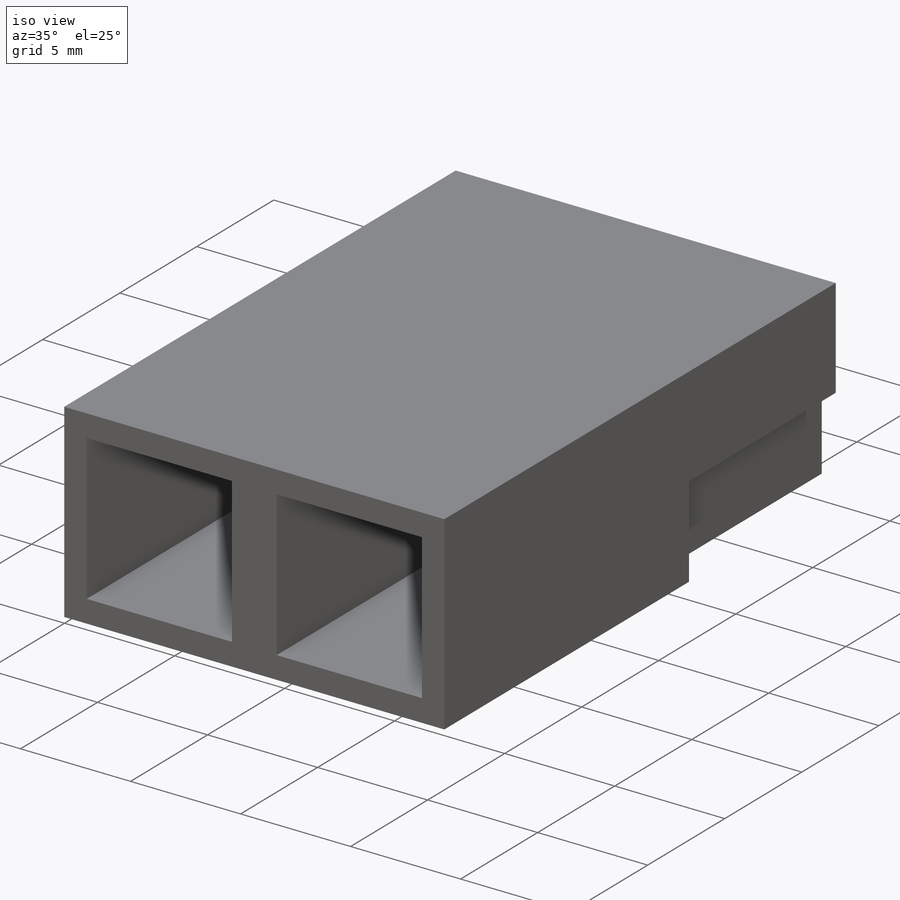
[diagram: iso view]
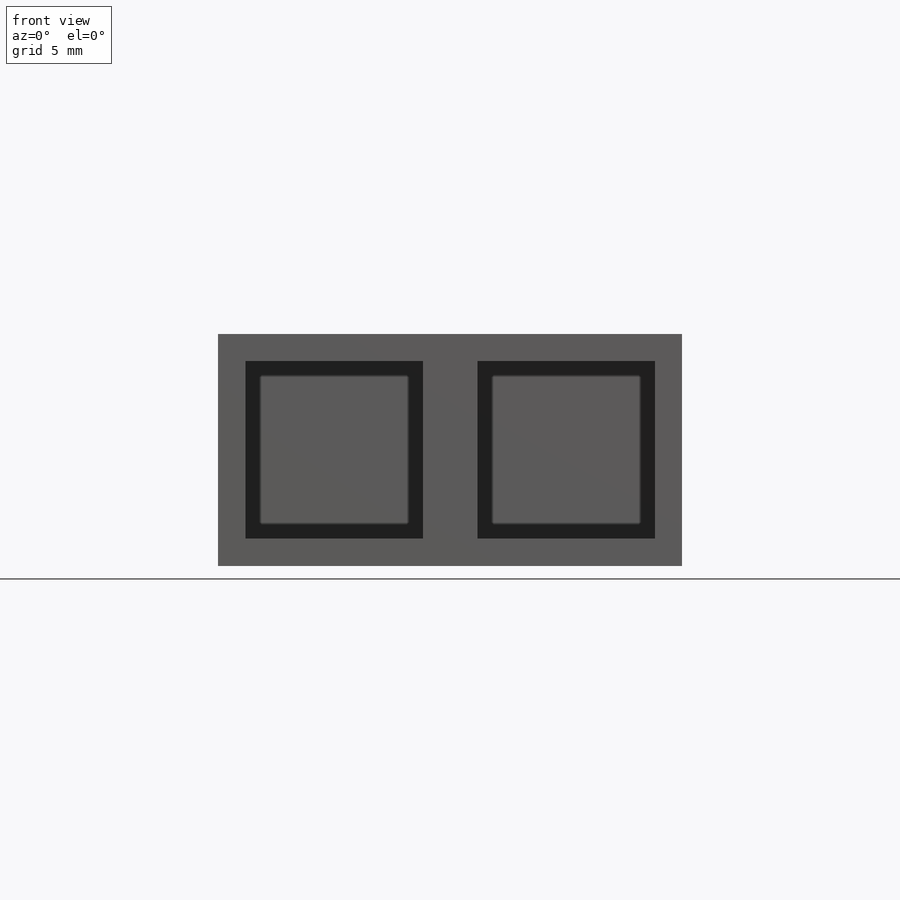
[diagram: front view]
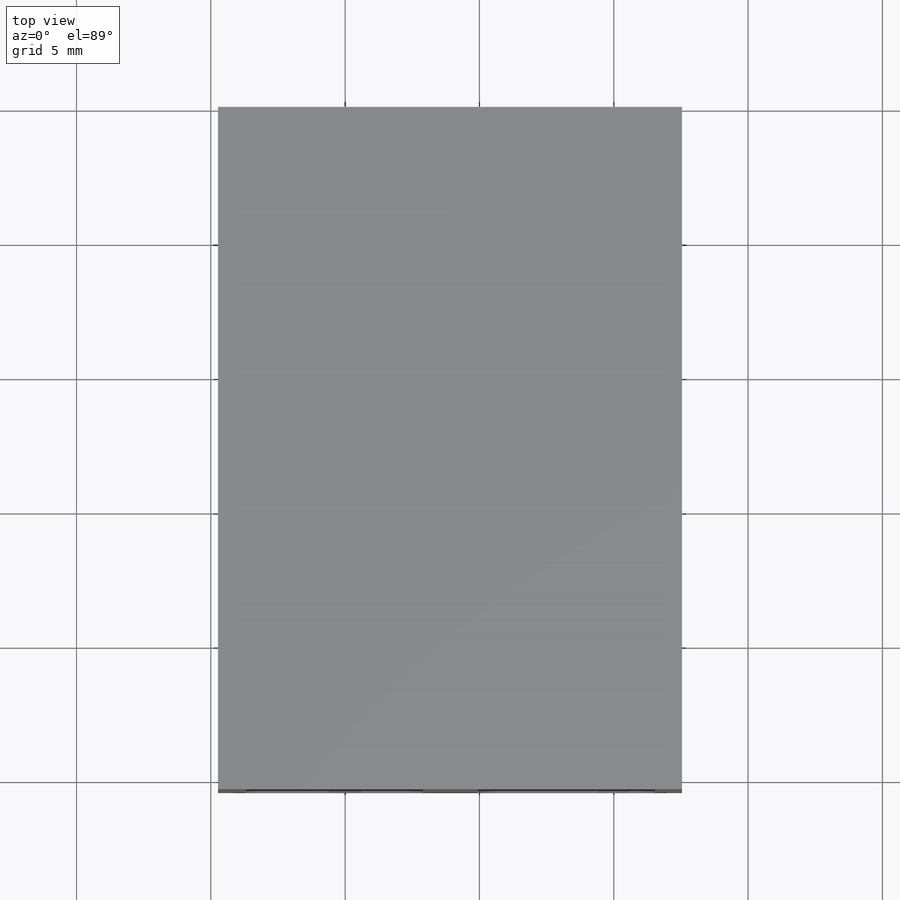
[diagram: top view]
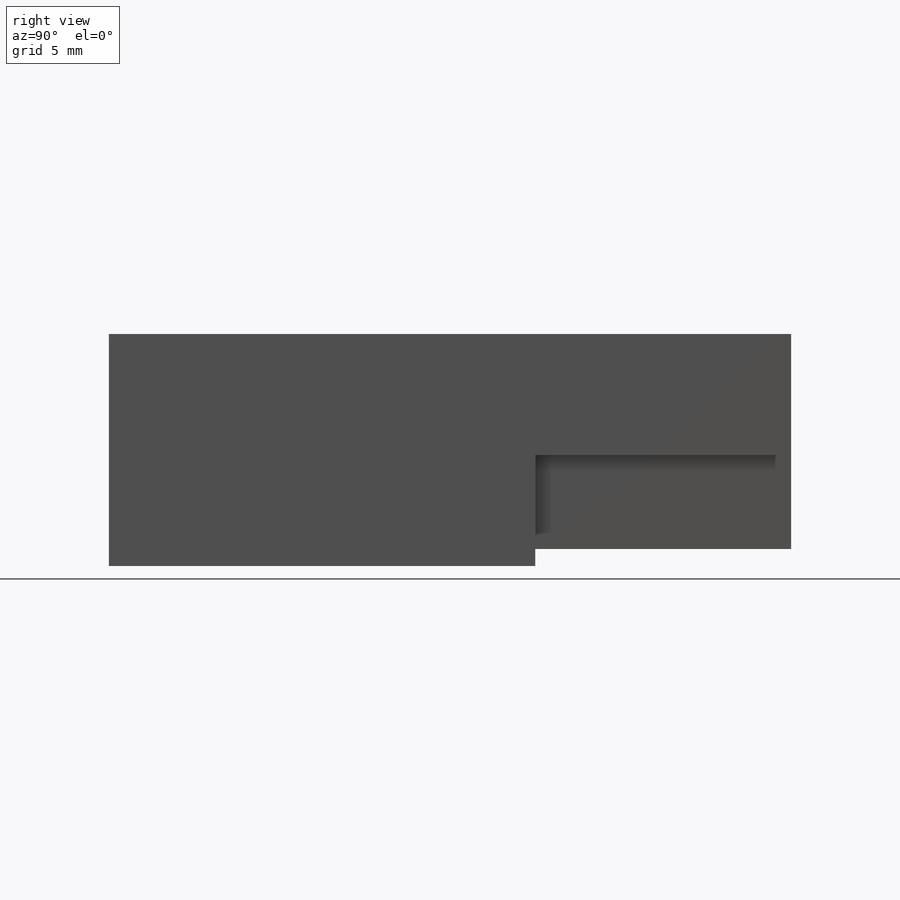
[diagram: right view]
SOLIDWORKS PART (.sldprt)
format: sldprt  version: not decoded by parser v0  size: 228,352 bytes
history: native  units: mm
features: sketch x4, cut_extrude x3, material x1, extrude x1, pattern_linear x1, plane x1 (+11 scaffold rows collapsed)
feature tree (22):
  scaffold x11  (default folders/planes/origin — collapsed)
  material  "Material <not specified>"
  sketch  "Sketch1"  dims[D1=8.636mm D2=8.636mm]
  extrude  "Extrude1"  Depth=25.4mm
  sketch  "Sketch2"  dims[D1=1.016mm D2=1.016mm D3=1.016mm D4=1.016mm]
  cut_extrude  "Extrude2"  Depth=12.7mm
  sketch  "Sketch3"  dims[D1=0.508mm]
  cut_extrude  "Extrude3"  Depth=9.525mm
  sketch  "Sketch4"  dims[D2=0.635mm D3=0.635mm D4=0.635mm D1=0.0mm]
  cut_extrude  "Extrude4"  Depth=9.525mm
  pattern_linear  "LPattern1"  Count1=2 Count2=1 Spacing1=8.636mm Spacing2=2.54mm
  plane  "Plane1"
decode coverage: 9 of 9 modeling features carry decoded parameters
note: suppression state not decoded; provenance and decode notes live in map.json
